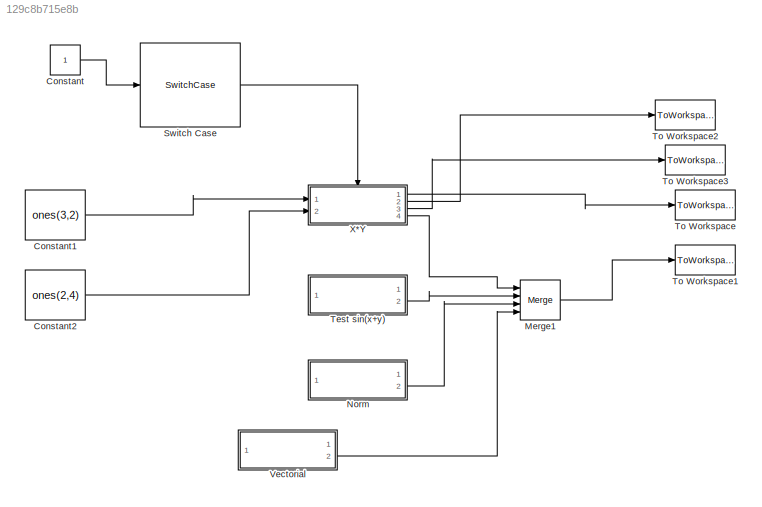
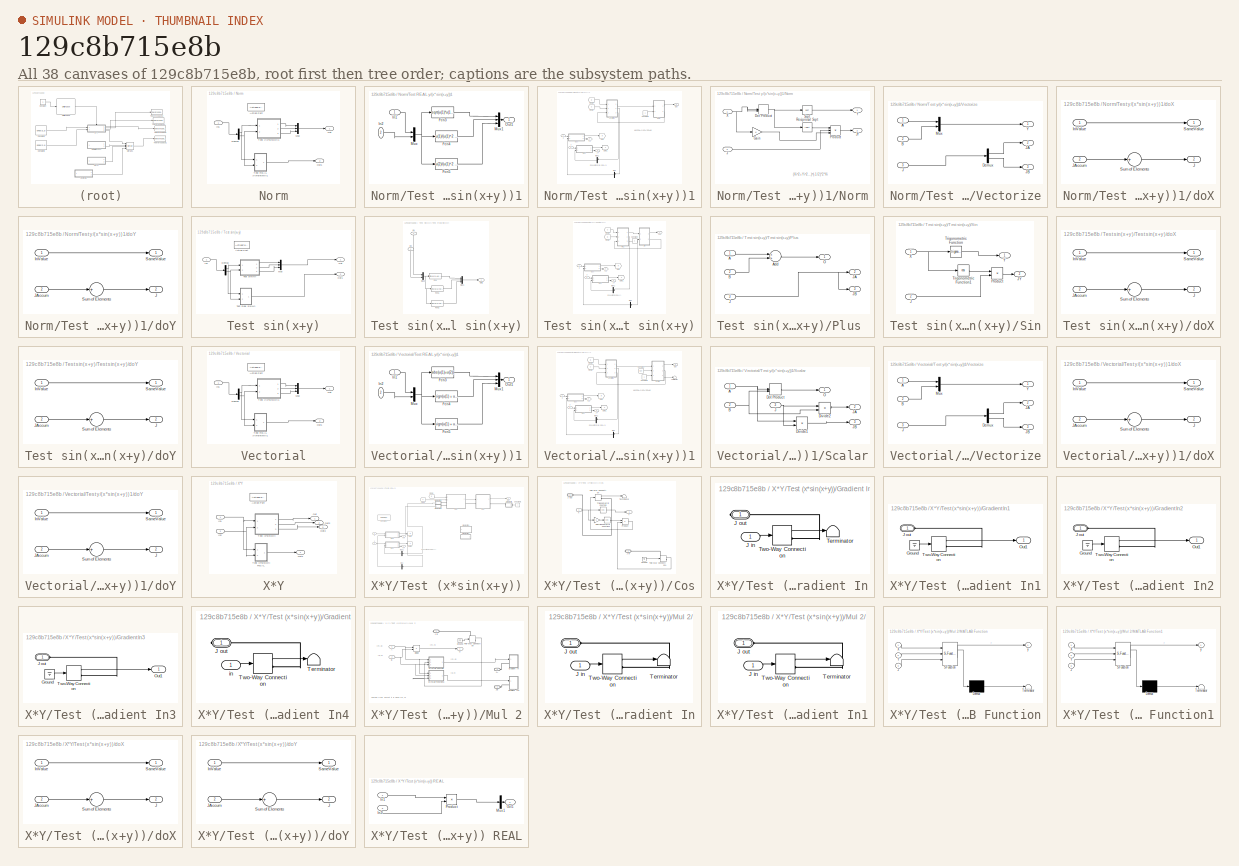
[diagram: thumbnail index - all 38 canvases of the model, root first then tree order]
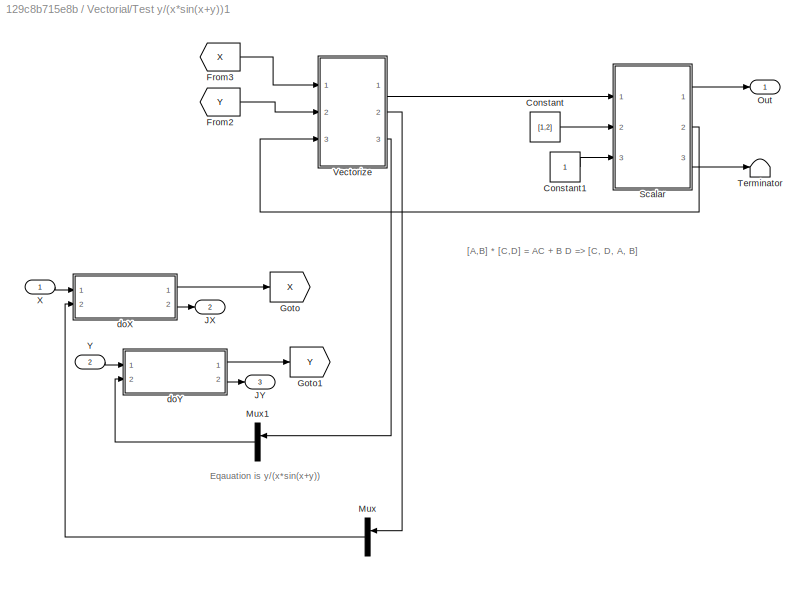
MODEL slx_129c8b715e8b
KIND model
CONFIG AbsTol = auto
CONFIG EnableMultiTasking = on
CONFIG FixedStep = 0.01
CONFIG MaxStep = auto
CONFIG MinStep = auto
CONFIG RelTol = 1e-3
CONFIG SampleTimeConstraint = Unconstrained
CONFIG Solver = FixedStepDiscrete
CONFIG SolverName = FixedStepDiscrete
CONFIG StartTime = 0.0
CONFIG StopTime = Inf
BLOCK [Constant] Constant
BLOCK [Constant] Constant1
  Value = ones(3,2)
BLOCK [Constant] Constant2
  Value = ones(2,4)
BLOCK [Merge] Merge1
  Commented = on
  Inputs = 4
  Ports = [4, 1]
BLOCK [SubSystem] Norm
  Commented = on
  Ports = [1, 2, 0, 0, 0, 0, 0, 1]
  RequestExecContextInheritance = off
  TreatAsAtomicUnit = on
  Variant = off
BLOCK [ActionPort] Norm/Action Port
BLOCK [Demux] Norm/Demux
  DisplayOption = bar
  Outputs = 2
  Ports = [1, 2]
BLOCK [Inport] Norm/In1
  IconDisplay = Port number
BLOCK [Mux] Norm/Mux
  DisplayOption = bar
  Inputs = 3
  Ports = [3, 1]
BLOCK [Outport] Norm/Out
  IconDisplay = Port number
BLOCK [Outport] Norm/Out1
  IconDisplay = Port number
  Port = 2
BLOCK [SubSystem] Norm/Test REAL y//(x*sin(x+y))1
  Ports = [2, 1]
  RequestExecContextInheritance = off
  Variant = off
BLOCK [Fcn] Norm/Test REAL y//(x*sin(x+y))1/Fcn3
  Expr = sqrt(u(1)*u(1)+u(2)*u(2))
BLOCK [Fcn] Norm/Test REAL y//(x*sin(x+y))1/Fcn4
  Expr = u(1)/(u(1)^2 + u(2)^2)^(1/2)
BLOCK [Fcn] Norm/Test REAL y//(x*sin(x+y))1/Fcn5
  Expr = u(2)/(u(1)^2 + u(2)^2)^(1/2)
BLOCK [Inport] Norm/Test REAL y//(x*sin(x+y))1/In1
  IconDisplay = Port number
BLOCK [Inport] Norm/Test REAL y//(x*sin(x+y))1/In2
  IconDisplay = Port number
  Port = 2
BLOCK [Mux] Norm/Test REAL y//(x*sin(x+y))1/Mux
  DisplayOption = bar
  Inputs = 2
  Ports = [2, 1]
BLOCK [Mux] Norm/Test REAL y//(x*sin(x+y))1/Mux1
  DisplayOption = bar
  Inputs = 3
  Ports = [3, 1]
BLOCK [Outport] Norm/Test REAL y//(x*sin(x+y))1/Out1
  IconDisplay = Port number
BLOCK [SubSystem] Norm/Test y//(x*sin(x+y))1
  Ports = [2, 3]
  RequestExecContextInheritance = off
  Variant = off
BLOCK [Constant] Norm/Test y//(x*sin(x+y))1/Constant1
BLOCK [From] Norm/Test y//(x*sin(x+y))1/From2
  GotoTag = Y
BLOCK [From] Norm/Test y//(x*sin(x+y))1/From3
  GotoTag = X
BLOCK [Goto] Norm/Test y//(x*sin(x+y))1/Goto
  GotoTag = X
BLOCK [Goto] Norm/Test y//(x*sin(x+y))1/Goto1
  GotoTag = Y
BLOCK [Outport] Norm/Test y//(x*sin(x+y))1/JX
  IconDisplay = Port number
  Port = 2
BLOCK [Outport] Norm/Test y//(x*sin(x+y))1/JY
  IconDisplay = Port number
  Port = 3
BLOCK [Mux] Norm/Test y//(x*sin(x+y))1/Mux
  DisplayOption = bar
  Inputs = 2
  Ports = [2, 1]
BLOCK [Mux] Norm/Test y//(x*sin(x+y))1/Mux1
  DisplayOption = bar
  Inputs = 2
  Ports = [2, 1]
BLOCK [SubSystem] Norm/Test y//(x*sin(x+y))1/Norm
  Ports = [2, 2]
  RequestExecContextInheritance = off
  Variant = off
BLOCK [DotProduct] Norm/Test y//(x*sin(x+y))1/Norm/Dot Product
  OutDataTypeStr = Inherit: Inherit via internal rule
BLOCK [Gain] Norm/Test y//(x*sin(x+y))1/Norm/Gain
  OutDataTypeStr = Inherit: Inherit via internal rule
  ParamDataTypeStr = Inherit: Inherit via internal rule
  SaturateOnIntegerOverflow = off
BLOCK [Inport] Norm/Test y//(x*sin(x+y))1/Norm/J
  IconDisplay = Port number
  Port = 2
BLOCK [Outport] Norm/Test y//(x*sin(x+y))1/Norm/JY
  IconDisplay = Port number
  Port = 2
BLOCK [Product] Norm/Test y//(x*sin(x+y))1/Norm/Product
  InputSameDT = off
  Inputs = 3
  OutDataTypeStr = Inherit: Inherit via internal rule
  Ports = [3, 1]
  RndMeth = Floor
  SaturateOnIntegerOverflow = off
BLOCK [Sqrt] Norm/Test y//(x*sin(x+y))1/Norm/Reciprocal Sqrt
  Operator = rSqrt
BLOCK [Sqrt] Norm/Test y//(x*sin(x+y))1/Norm/Sqrt
BLOCK [Inport] Norm/Test y//(x*sin(x+y))1/Norm/X
  IconDisplay = Port number
BLOCK [Outport] Norm/Test y//(x*sin(x+y))1/Norm/Y
  IconDisplay = Port number
BLOCK [Outport] Norm/Test y//(x*sin(x+y))1/Out
  IconDisplay = Port number
BLOCK [SubSystem] Norm/Test y//(x*sin(x+y))1/Vectorize
  Ports = [3, 3]
  RequestExecContextInheritance = off
  Variant = off
BLOCK [Inport] Norm/Test y//(x*sin(x+y))1/Vectorize/A
  IconDisplay = Port number
BLOCK [Inport] Norm/Test y//(x*sin(x+y))1/Vectorize/B
  IconDisplay = Port number
  Port = 2
BLOCK [Demux] Norm/Test y//(x*sin(x+y))1/Vectorize/Demux
  DisplayOption = bar
  Outputs = 2
  Ports = [1, 2]
BLOCK [Inport] Norm/Test y//(x*sin(x+y))1/Vectorize/J
  IconDisplay = Port number
  Port = 3
BLOCK [Outport] Norm/Test y//(x*sin(x+y))1/Vectorize/JA
  IconDisplay = Port number
  Port = 2
BLOCK [Outport] Norm/Test y//(x*sin(x+y))1/Vectorize/JB
  IconDisplay = Port number
  Port = 3
BLOCK [Mux] Norm/Test y//(x*sin(x+y))1/Vectorize/Mux
  DisplayOption = bar
  Inputs = 2
  Ports = [2, 1]
BLOCK [Outport] Norm/Test y//(x*sin(x+y))1/Vectorize/Y
  IconDisplay = Port number
BLOCK [Inport] Norm/Test y//(x*sin(x+y))1/X
  IconDisplay = Port number
BLOCK [Inport] Norm/Test y//(x*sin(x+y))1/Y
  IconDisplay = Port number
  Port = 2
BLOCK [SubSystem] Norm/Test y//(x*sin(x+y))1/doX
  Ports = [2, 2]
  RequestExecContextInheritance = off
  Variant = off
BLOCK [Inport] Norm/Test y//(x*sin(x+y))1/doX/InValue
  IconDisplay = Port number
BLOCK [Outport] Norm/Test y//(x*sin(x+y))1/doX/J
  IconDisplay = Port number
  Port = 2
BLOCK [Inport] Norm/Test y//(x*sin(x+y))1/doX/JAccum
  IconDisplay = Port number
  Port = 2
BLOCK [Outport] Norm/Test y//(x*sin(x+y))1/doX/SameValue
  IconDisplay = Port number
BLOCK [Sum] Norm/Test y//(x*sin(x+y))1/doX/Sum of Elements
  InputSameDT = off
  Inputs = +
  OutDataTypeStr = Inherit: Inherit via internal rule
  Ports = [1, 1]
  SaturateOnIntegerOverflow = off
BLOCK [SubSystem] Norm/Test y//(x*sin(x+y))1/doY
  Ports = [2, 2]
  RequestExecContextInheritance = off
  Variant = off
BLOCK [Inport] Norm/Test y//(x*sin(x+y))1/doY/InValue
  IconDisplay = Port number
BLOCK [Outport] Norm/Test y//(x*sin(x+y))1/doY/J
  IconDisplay = Port number
  Port = 2
BLOCK [Inport] Norm/Test y//(x*sin(x+y))1/doY/JAccum
  IconDisplay = Port number
  Port = 2
BLOCK [Outport] Norm/Test y//(x*sin(x+y))1/doY/SameValue
  IconDisplay = Port number
BLOCK [Sum] Norm/Test y//(x*sin(x+y))1/doY/Sum of Elements
  InputSameDT = off
  Inputs = +
  OutDataTypeStr = Inherit: Inherit via internal rule
  Ports = [1, 1]
  SaturateOnIntegerOverflow = off
BLOCK [SwitchCase] Switch Case
  Ports = [1, 1]
  ShowDefaultCase = off
BLOCK [SubSystem] Test sin(x+y)
  Commented = on
  Ports = [1, 2, 0, 0, 0, 0, 0, 1]
  RequestExecContextInheritance = off
  TreatAsAtomicUnit = on
  Variant = off
BLOCK [ActionPort] Test sin(x+y)/Action Port
BLOCK [Demux] Test sin(x+y)/Demux
  DisplayOption = bar
  Outputs = 2
  Ports = [1, 2]
BLOCK [Inport] Test sin(x+y)/In1
  IconDisplay = Port number
BLOCK [Mux] Test sin(x+y)/Mux
  DisplayOption = bar
  Inputs = 3
  Ports = [3, 1]
BLOCK [Outport] Test sin(x+y)/Out
  IconDisplay = Port number
BLOCK [Outport] Test sin(x+y)/Out1
  IconDisplay = Port number
  Port = 2
BLOCK [SubSystem] Test sin(x+y)/Test Real sin(x+y)
  Ports = [2, 1]
  RequestExecContextInheritance = off
  Variant = off
BLOCK [Fcn] Test sin(x+y)/Test Real sin(x+y)/Fcn
  Expr = sin(u(1) + u(2))
BLOCK [Fcn] Test sin(x+y)/Test Real sin(x+y)/Fcn1
  Expr = cos(u(1) + u(2))
BLOCK [Fcn] Test sin(x+y)/Test Real sin(x+y)/Fcn2
  Expr = cos(u(1) + u(2))
BLOCK [Inport] Test sin(x+y)/Test Real sin(x+y)/In1
  IconDisplay = Port number
BLOCK [Inport] Test sin(x+y)/Test Real sin(x+y)/In2
  IconDisplay = Port number
  Port = 2
BLOCK [Mux] Test sin(x+y)/Test Real sin(x+y)/Mux1
  DisplayOption = bar
  Inputs = 3
  Ports = [3, 1]
BLOCK [Mux] Test sin(x+y)/Test Real sin(x+y)/Mux2
  DisplayOption = bar
  Inputs = 2
  Ports = [2, 1]
BLOCK [Outport] Test sin(x+y)/Test Real sin(x+y)/Out1
  IconDisplay = Port number
BLOCK [SubSystem] Test sin(x+y)/Test sin(x+y)
  Ports = [2, 3]
  RequestExecContextInheritance = off
  Variant = off
BLOCK [Constant] Test sin(x+y)/Test sin(x+y)/Constant
BLOCK [From] Test sin(x+y)/Test sin(x+y)/From2
  GotoTag = X
BLOCK [From] Test sin(x+y)/Test sin(x+y)/From3
  GotoTag = Y
BLOCK [Goto] Test sin(x+y)/Test sin(x+y)/Goto
  GotoTag = X
BLOCK [Goto] Test sin(x+y)/Test sin(x+y)/Goto1
  GotoTag = Y
BLOCK [Outport] Test sin(x+y)/Test sin(x+y)/JX
  IconDisplay = Port number
  Port = 2
BLOCK [Outport] Test sin(x+y)/Test sin(x+y)/JX1
  IconDisplay = Port number
BLOCK [Outport] Test sin(x+y)/Test sin(x+y)/JY
  IconDisplay = Port number
  Port = 3
BLOCK [Mux] Test sin(x+y)/Test sin(x+y)/Mux
  DisplayOption = bar
  Inputs = 1
  Ports = [1, 1]
BLOCK [Mux] Test sin(x+y)/Test sin(x+y)/Mux1
  DisplayOption = bar
  Inputs = 1
  Ports = [1, 1]
BLOCK [SubSystem] Test sin(x+y)/Test sin(x+y)/Plus 
  Ports = [3, 3]
  RequestExecContextInheritance = off
  Variant = off
BLOCK [Inport] Test sin(x+y)/Test sin(x+y)/Plus /A
  IconDisplay = Port number
BLOCK [Sum] Test sin(x+y)/Test sin(x+y)/Plus /Add
  InputSameDT = off
  OutDataTypeStr = Inherit: Inherit via internal rule
  Ports = [2, 1]
  SaturateOnIntegerOverflow = off
BLOCK [Inport] Test sin(x+y)/Test sin(x+y)/Plus /B
  IconDisplay = Port number
  Port = 2
BLOCK [Inport] Test sin(x+y)/Test sin(x+y)/Plus /J
  IconDisplay = Port number
  Port = 3
BLOCK [Outport] Test sin(x+y)/Test sin(x+y)/Plus /JA
  IconDisplay = Port number
  Port = 2
BLOCK [Outport] Test sin(x+y)/Test sin(x+y)/Plus /JB
  IconDisplay = Port number
  Port = 3
BLOCK [Outport] Test sin(x+y)/Test sin(x+y)/Plus /O
  IconDisplay = Port number
BLOCK [SubSystem] Test sin(x+y)/Test sin(x+y)/Sin
  Ports = [2, 2]
  RequestExecContextInheritance = off
  Variant = off
BLOCK [Inport] Test sin(x+y)/Test sin(x+y)/Sin/J
  IconDisplay = Port number
  Port = 2
BLOCK [Outport] Test sin(x+y)/Test sin(x+y)/Sin/JY
  IconDisplay = Port number
  Port = 2
BLOCK [Product] Test sin(x+y)/Test sin(x+y)/Sin/Product
  InputSameDT = off
  OutDataTypeStr = Inherit: Inherit via internal rule
  Ports = [2, 1]
  RndMeth = Floor
  SaturateOnIntegerOverflow = off
BLOCK [Trigonometry] Test sin(x+y)/Test sin(x+y)/Sin/Trigonometric Function
  Ports = [1, 1]
BLOCK [Trigonometry] Test sin(x+y)/Test sin(x+y)/Sin/Trigonometric Function1
  Operator = cos
  Ports = [1, 1]
BLOCK [Inport] Test sin(x+y)/Test sin(x+y)/Sin/X
  IconDisplay = Port number
BLOCK [Outport] Test sin(x+y)/Test sin(x+y)/Sin/Y
  IconDisplay = Port number
BLOCK [Inport] Test sin(x+y)/Test sin(x+y)/X
  IconDisplay = Port number
BLOCK [Inport] Test sin(x+y)/Test sin(x+y)/Y
  IconDisplay = Port number
  Port = 2
BLOCK [SubSystem] Test sin(x+y)/Test sin(x+y)/doX
  Ports = [2, 2]
  RequestExecContextInheritance = off
  Variant = off
BLOCK [Inport] Test sin(x+y)/Test sin(x+y)/doX/InValue
  IconDisplay = Port number
BLOCK [Outport] Test sin(x+y)/Test sin(x+y)/doX/J
  IconDisplay = Port number
  Port = 2
BLOCK [Inport] Test sin(x+y)/Test sin(x+y)/doX/JAccum
  IconDisplay = Port number
  Port = 2
BLOCK [Outport] Test sin(x+y)/Test sin(x+y)/doX/SameValue
  IconDisplay = Port number
BLOCK [Sum] Test sin(x+y)/Test sin(x+y)/doX/Sum of Elements
  InputSameDT = off
  Inputs = +
  OutDataTypeStr = Inherit: Inherit via internal rule
  Ports = [1, 1]
  SaturateOnIntegerOverflow = off
BLOCK [SubSystem] Test sin(x+y)/Test sin(x+y)/doY
  Ports = [2, 2]
  RequestExecContextInheritance = off
  Variant = off
BLOCK [Inport] Test sin(x+y)/Test sin(x+y)/doY/InValue
  IconDisplay = Port number
BLOCK [Outport] Test sin(x+y)/Test sin(x+y)/doY/J
  IconDisplay = Port number
  Port = 2
BLOCK [Inport] Test sin(x+y)/Test sin(x+y)/doY/JAccum
  IconDisplay = Port number
  Port = 2
BLOCK [Outport] Test sin(x+y)/Test sin(x+y)/doY/SameValue
  IconDisplay = Port number
BLOCK [Sum] Test sin(x+y)/Test sin(x+y)/doY/Sum of Elements
  InputSameDT = off
  Inputs = +
  OutDataTypeStr = Inherit: Inherit via internal rule
  Ports = [1, 1]
  SaturateOnIntegerOverflow = off
BLOCK [ToWorkspace] To Workspace
  FixptAsFi = on
  MaxDataPoints = inf
  Ports = [1]
  SampleTime = -1
  Save2DSignal = 3-D array (concatenate along third dimension)
  SaveFormat = Timeseries
  VariableName = simout
BLOCK [ToWorkspace] To Workspace1
  FixptAsFi = on
  MaxDataPoints = inf
  Ports = [1]
  SampleTime = -1
  Save2DSignal = 3-D array (concatenate along third dimension)
  SaveFormat = Timeseries
  VariableName = simout1
BLOCK [ToWorkspace] To Workspace2
  FixptAsFi = on
  MaxDataPoints = inf
  Ports = [1]
  SampleTime = -1
  Save2DSignal = 3-D array (concatenate along third dimension)
  SaveFormat = Timeseries
  VariableName = simout2
BLOCK [ToWorkspace] To Workspace3
  FixptAsFi = on
  MaxDataPoints = inf
  Ports = [1]
  SampleTime = -1
  Save2DSignal = 3-D array (concatenate along third dimension)
  SaveFormat = Timeseries
  VariableName = simout3
BLOCK [SubSystem] Vectorial
  Commented = on
  Ports = [1, 2, 0, 0, 0, 0, 0, 1]
  RequestExecContextInheritance = off
  TreatAsAtomicUnit = on
  Variant = off
BLOCK [ActionPort] Vectorial/Action Port
BLOCK [Demux] Vectorial/Demux
  DisplayOption = bar
  Outputs = 2
  Ports = [1, 2]
BLOCK [Inport] Vectorial/In1
  IconDisplay = Port number
BLOCK [Mux] Vectorial/Mux
  DisplayOption = bar
  Inputs = 3
  Ports = [3, 1]
BLOCK [Outport] Vectorial/Out
  IconDisplay = Port number
BLOCK [Outport] Vectorial/Out1
  IconDisplay = Port number
  Port = 2
BLOCK [SubSystem] Vectorial/Test REAL y//(x*sin(x+y))1
  Ports = [2, 1]
  RequestExecContextInheritance = off
  Variant = off
BLOCK [Fcn] Vectorial/Test REAL y//(x*sin(x+y))1/Fcn3
  Expr = abs(u(1)+u(2))
BLOCK [Fcn] Vectorial/Test REAL y//(x*sin(x+y))1/Fcn4
  Expr = sign(u(1) + u(2))
BLOCK [Fcn] Vectorial/Test REAL y//(x*sin(x+y))1/Fcn5
  Expr = sign(u(1) + u(2))
BLOCK [Inport] Vectorial/Test REAL y//(x*sin(x+y))1/In1
  IconDisplay = Port number
BLOCK [Inport] Vectorial/Test REAL y//(x*sin(x+y))1/In2
  IconDisplay = Port number
  Port = 2
BLOCK [Mux] Vectorial/Test REAL y//(x*sin(x+y))1/Mux
  DisplayOption = bar
  Inputs = 2
  Ports = [2, 1]
BLOCK [Mux] Vectorial/Test REAL y//(x*sin(x+y))1/Mux1
  DisplayOption = bar
  Inputs = 3
  Ports = [3, 1]
BLOCK [Outport] Vectorial/Test REAL y//(x*sin(x+y))1/Out1
  IconDisplay = Port number
BLOCK [SubSystem] Vectorial/Test y//(x*sin(x+y))1
  Ports = [2, 3]
  RequestExecContextInheritance = off
  Variant = off
BLOCK [Constant] Vectorial/Test y//(x*sin(x+y))1/Constant
  Value = [1,2]
BLOCK [Constant] Vectorial/Test y//(x*sin(x+y))1/Constant1
BLOCK [From] Vectorial/Test y//(x*sin(x+y))1/From2
  GotoTag = Y
BLOCK [From] Vectorial/Test y//(x*sin(x+y))1/From3
  GotoTag = X
BLOCK [Goto] Vectorial/Test y//(x*sin(x+y))1/Goto
  GotoTag = X
BLOCK [Goto] Vectorial/Test y//(x*sin(x+y))1/Goto1
  GotoTag = Y
BLOCK [Outport] Vectorial/Test y//(x*sin(x+y))1/JX
  IconDisplay = Port number
  Port = 2
BLOCK [Outport] Vectorial/Test y//(x*sin(x+y))1/JY
  IconDisplay = Port number
  Port = 3
BLOCK [Mux] Vectorial/Test y//(x*sin(x+y))1/Mux
  DisplayOption = bar
  Inputs = 2
  Ports = [2, 1]
BLOCK [Mux] Vectorial/Test y//(x*sin(x+y))1/Mux1
  DisplayOption = bar
  Inputs = 2
  Ports = [2, 1]
BLOCK [Outport] Vectorial/Test y//(x*sin(x+y))1/Out
  IconDisplay = Port number
BLOCK [SubSystem] Vectorial/Test y//(x*sin(x+y))1/Scalar
  Ports = [3, 3]
  RequestExecContextInheritance = off
  Variant = off
BLOCK [Inport] Vectorial/Test y//(x*sin(x+y))1/Scalar/A
  IconDisplay = Port number
BLOCK [Inport] Vectorial/Test y//(x*sin(x+y))1/Scalar/B
  IconDisplay = Port number
  Port = 2
BLOCK [Product] Vectorial/Test y//(x*sin(x+y))1/Scalar/Divide1
  InputSameDT = off
  Inputs = **
  OutDataTypeStr = Inherit: Inherit via internal rule
  Ports = [2, 1]
  RndMeth = Floor
  SaturateOnIntegerOverflow = off
BLOCK [Product] Vectorial/Test y//(x*sin(x+y))1/Scalar/Divide2
  InputSameDT = off
  Inputs = **
  OutDataTypeStr = Inherit: Inherit via internal rule
  Ports = [2, 1]
  RndMeth = Floor
  SaturateOnIntegerOverflow = off
BLOCK [DotProduct] Vectorial/Test y//(x*sin(x+y))1/Scalar/Dot Product
  OutDataTypeStr = Inherit: Inherit via internal rule
BLOCK [Inport] Vectorial/Test y//(x*sin(x+y))1/Scalar/J
  IconDisplay = Port number
  Port = 3
BLOCK [Outport] Vectorial/Test y//(x*sin(x+y))1/Scalar/JA
  IconDisplay = Port number
  Port = 2
BLOCK [Outport] Vectorial/Test y//(x*sin(x+y))1/Scalar/JB
  IconDisplay = Port number
  Port = 3
BLOCK [Outport] Vectorial/Test y//(x*sin(x+y))1/Scalar/O
  IconDisplay = Port number
BLOCK [Terminator] Vectorial/Test y//(x*sin(x+y))1/Terminator
BLOCK [SubSystem] Vectorial/Test y//(x*sin(x+y))1/Vectorize
  Ports = [3, 3]
  RequestExecContextInheritance = off
  Variant = off
BLOCK [Inport] Vectorial/Test y//(x*sin(x+y))1/Vectorize/A
  IconDisplay = Port number
BLOCK [Inport] Vectorial/Test y//(x*sin(x+y))1/Vectorize/B
  IconDisplay = Port number
  Port = 2
BLOCK [Demux] Vectorial/Test y//(x*sin(x+y))1/Vectorize/Demux
  DisplayOption = bar
  Outputs = 2
  Ports = [1, 2]
BLOCK [Inport] Vectorial/Test y//(x*sin(x+y))1/Vectorize/J
  IconDisplay = Port number
  Port = 3
BLOCK [Outport] Vectorial/Test y//(x*sin(x+y))1/Vectorize/JA
  IconDisplay = Port number
  Port = 2
BLOCK [Outport] Vectorial/Test y//(x*sin(x+y))1/Vectorize/JB
  IconDisplay = Port number
  Port = 3
BLOCK [Mux] Vectorial/Test y//(x*sin(x+y))1/Vectorize/Mux
  DisplayOption = bar
  Inputs = 2
  Ports = [2, 1]
BLOCK [Outport] Vectorial/Test y//(x*sin(x+y))1/Vectorize/Y
  IconDisplay = Port number
BLOCK [Inport] Vectorial/Test y//(x*sin(x+y))1/X
  IconDisplay = Port number
BLOCK [Inport] Vectorial/Test y//(x*sin(x+y))1/Y
  IconDisplay = Port number
  Port = 2
BLOCK [SubSystem] Vectorial/Test y//(x*sin(x+y))1/doX
  Ports = [2, 2]
  RequestExecContextInheritance = off
  Variant = off
BLOCK [Inport] Vectorial/Test y//(x*sin(x+y))1/doX/InValue
  IconDisplay = Port number
BLOCK [Outport] Vectorial/Test y//(x*sin(x+y))1/doX/J
  IconDisplay = Port number
  Port = 2
BLOCK [Inport] Vectorial/Test y//(x*sin(x+y))1/doX/JAccum
  IconDisplay = Port number
  Port = 2
BLOCK [Outport] Vectorial/Test y//(x*sin(x+y))1/doX/SameValue
  IconDisplay = Port number
BLOCK [Sum] Vectorial/Test y//(x*sin(x+y))1/doX/Sum of Elements
  InputSameDT = off
  Inputs = +
  OutDataTypeStr = Inherit: Inherit via internal rule
  Ports = [1, 1]
  SaturateOnIntegerOverflow = off
BLOCK [SubSystem] Vectorial/Test y//(x*sin(x+y))1/doY
  Ports = [2, 2]
  RequestExecContextInheritance = off
  Variant = off
BLOCK [Inport] Vectorial/Test y//(x*sin(x+y))1/doY/InValue
  IconDisplay = Port number
BLOCK [Outport] Vectorial/Test y//(x*sin(x+y))1/doY/J
  IconDisplay = Port number
  Port = 2
BLOCK [Inport] Vectorial/Test y//(x*sin(x+y))1/doY/JAccum
  IconDisplay = Port number
  Port = 2
BLOCK [Outport] Vectorial/Test y//(x*sin(x+y))1/doY/SameValue
  IconDisplay = Port number
BLOCK [Sum] Vectorial/Test y//(x*sin(x+y))1/doY/Sum of Elements
  InputSameDT = off
  Inputs = +
  OutDataTypeStr = Inherit: Inherit via internal rule
  Ports = [1, 1]
  SaturateOnIntegerOverflow = off
BLOCK [SubSystem] X*Y
  Ports = [2, 4, 0, 0, 0, 0, 0, 1]
  RequestExecContextInheritance = off
  TreatAsAtomicUnit = on
  Variant = off
BLOCK [ActionPort] X*Y/Action Port
  ActionType = case
BLOCK [Inport] X*Y/In1
  IconDisplay = Port number
BLOCK [Inport] X*Y/In2
  IconDisplay = Port number
  Port = 2
BLOCK [Outport] X*Y/Out
  IconDisplay = Port number
BLOCK [Outport] X*Y/Out1
  IconDisplay = Port number
  Port = 4
BLOCK [Outport] X*Y/Out2
  IconDisplay = Port number
  Port = 2
BLOCK [Outport] X*Y/Out3
  IconDisplay = Port number
  Port = 3
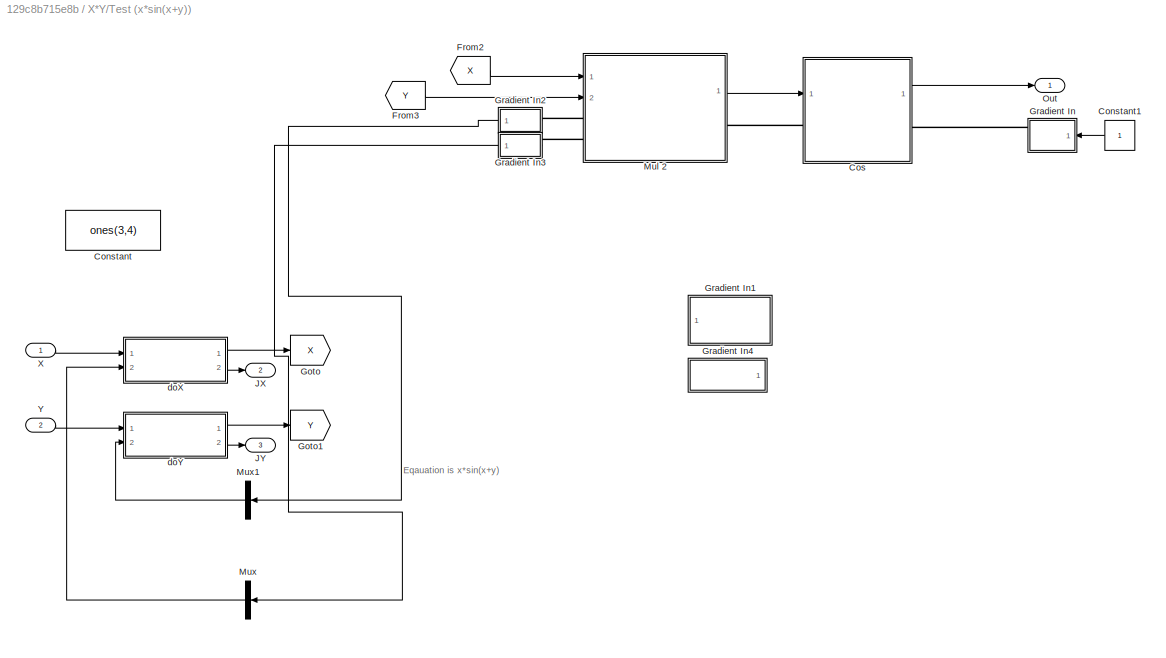
BLOCK [SubSystem] X*Y/Test (x*sin(x+y))
  Ports = [2, 3]
  RequestExecContextInheritance = off
  Variant = off
BLOCK [SubSystem] X*Y/Test (x*sin(x+y)) REAL
  Ports = [2, 1]
  RequestExecContextInheritance = off
  Variant = off
BLOCK [Inport] X*Y/Test (x*sin(x+y)) REAL/In1
  IconDisplay = Port number
BLOCK [Inport] X*Y/Test (x*sin(x+y)) REAL/In2
  IconDisplay = Port number
  Port = 2
BLOCK [Mux] X*Y/Test (x*sin(x+y)) REAL/Mux1
  DisplayOption = bar
  Inputs = 1
  Ports = [1, 1]
BLOCK [Outport] X*Y/Test (x*sin(x+y)) REAL/Out1
  IconDisplay = Port number
BLOCK [Product] X*Y/Test (x*sin(x+y)) REAL/Product
  InputSameDT = off
  Multiplication = Matrix(*)
  OutDataTypeStr = Inherit: Inherit via internal rule
  Ports = [2, 1]
  RndMeth = Floor
  SaturateOnIntegerOverflow = off
BLOCK [Constant] X*Y/Test (x*sin(x+y))/Constant
  Commented = on
  Value = ones(3,4)
BLOCK [Constant] X*Y/Test (x*sin(x+y))/Constant1
BLOCK [SubSystem] X*Y/Test (x*sin(x+y))/Cos
  Ports = [1, 1, 0, 0, 0, 1, 1]
  RequestExecContextInheritance = off
  Variant = off
BLOCK [Gain] X*Y/Test (x*sin(x+y))/Cos/Gain
  Gain = -1
  OutDataTypeStr = Inherit: Inherit via internal rule
  ParamDataTypeStr = Inherit: Inherit via internal rule
  SaturateOnIntegerOverflow = off
BLOCK [Ground] X*Y/Test (x*sin(x+y))/Cos/Ground
BLOCK [PMIOPort] X*Y/Test (x*sin(x+y))/Cos/J in
  Port = 2
  Side = Right
BLOCK [PMIOPort] X*Y/Test (x*sin(x+y))/Cos/J out
  Port = 1
  Side = Left
BLOCK [Product] X*Y/Test (x*sin(x+y))/Cos/Product
  InputSameDT = off
  OutDataTypeStr = Inherit: Inherit via internal rule
  Ports = [2, 1]
  RndMeth = Floor
  SaturateOnIntegerOverflow = off
BLOCK [Terminator] X*Y/Test (x*sin(x+y))/Cos/Terminator
BLOCK [Trigonometry] X*Y/Test (x*sin(x+y))/Cos/Trigonometric Function
  Operator = cos
  Ports = [1, 1]
BLOCK [Trigonometry] X*Y/Test (x*sin(x+y))/Cos/Trigonometric Function1
  Operator = cos
  Ports = [1, 1]
BLOCK [TwoWayConnection] X*Y/Test (x*sin(x+y))/Cos/Two-Way Connection
  Ports = [1, 1, 0, 0, 0, 0, 1]
BLOCK [TwoWayConnection] X*Y/Test (x*sin(x+y))/Cos/Two-Way Connection1
  Ports = [1, 1, 0, 0, 0, 0, 1]
BLOCK [Inport] X*Y/Test (x*sin(x+y))/Cos/X
  IconDisplay = Port number
BLOCK [Outport] X*Y/Test (x*sin(x+y))/Cos/Y
  IconDisplay = Port number
BLOCK [From] X*Y/Test (x*sin(x+y))/From2
  GotoTag = X
BLOCK [From] X*Y/Test (x*sin(x+y))/From3
  GotoTag = Y
BLOCK [Goto] X*Y/Test (x*sin(x+y))/Goto
  GotoTag = X
BLOCK [Goto] X*Y/Test (x*sin(x+y))/Goto1
  GotoTag = Y
BLOCK [SubSystem] X*Y/Test (x*sin(x+y))/Gradient In
  Ports = [1, 0, 0, 0, 0, 0, 1]
  RequestExecContextInheritance = off
  Variant = off
BLOCK [Inport] X*Y/Test (x*sin(x+y))/Gradient In/J in
  IconDisplay = Port number
BLOCK [PMIOPort] X*Y/Test (x*sin(x+y))/Gradient In/J out
  Port = 1
  Side = Right
BLOCK [Terminator] X*Y/Test (x*sin(x+y))/Gradient In/Terminator
BLOCK [TwoWayConnection] X*Y/Test (x*sin(x+y))/Gradient In/Two-Way Connection
  Ports = [1, 1, 0, 0, 0, 0, 1]
BLOCK [SubSystem] X*Y/Test (x*sin(x+y))/Gradient In1
  Commented = on
  Ports = [0, 1, 0, 0, 0, 1]
  RequestExecContextInheritance = off
  Variant = off
BLOCK [Ground] X*Y/Test (x*sin(x+y))/Gradient In1/Ground
BLOCK [PMIOPort] X*Y/Test (x*sin(x+y))/Gradient In1/J out
  Port = 1
  Side = Left
BLOCK [Outport] X*Y/Test (x*sin(x+y))/Gradient In1/Out1
  IconDisplay = Port number
BLOCK [TwoWayConnection] X*Y/Test (x*sin(x+y))/Gradient In1/Two-Way Connection
  Ports = [1, 1, 0, 0, 0, 0, 1]
BLOCK [SubSystem] X*Y/Test (x*sin(x+y))/Gradient In2
  Ports = [0, 1, 0, 0, 0, 1]
  RequestExecContextInheritance = off
  Variant = off
BLOCK [Ground] X*Y/Test (x*sin(x+y))/Gradient In2/Ground
BLOCK [PMIOPort] X*Y/Test (x*sin(x+y))/Gradient In2/J out
  Port = 1
  Side = Left
BLOCK [Outport] X*Y/Test (x*sin(x+y))/Gradient In2/Out1
  IconDisplay = Port number
BLOCK [TwoWayConnection] X*Y/Test (x*sin(x+y))/Gradient In2/Two-Way Connection
  Ports = [1, 1, 0, 0, 0, 0, 1]
BLOCK [SubSystem] X*Y/Test (x*sin(x+y))/Gradient In3
  Ports = [0, 1, 0, 0, 0, 1]
  RequestExecContextInheritance = off
  Variant = off
BLOCK [Ground] X*Y/Test (x*sin(x+y))/Gradient In3/Ground
BLOCK [PMIOPort] X*Y/Test (x*sin(x+y))/Gradient In3/J out
  Port = 1
  Side = Left
BLOCK [Outport] X*Y/Test (x*sin(x+y))/Gradient In3/Out1
  IconDisplay = Port number
BLOCK [TwoWayConnection] X*Y/Test (x*sin(x+y))/Gradient In3/Two-Way Connection
  Ports = [1, 1, 0, 0, 0, 0, 1]
BLOCK [SubSystem] X*Y/Test (x*sin(x+y))/Gradient In4
  Commented = on
  Ports = [1, 0, 0, 0, 0, 0, 1]
  RequestExecContextInheritance = off
  Variant = off
BLOCK [Inport] X*Y/Test (x*sin(x+y))/Gradient In4/ in
  IconDisplay = Port number
BLOCK [PMIOPort] X*Y/Test (x*sin(x+y))/Gradient In4/J out
  Port = 1
  Side = Right
BLOCK [Terminator] X*Y/Test (x*sin(x+y))/Gradient In4/Terminator
BLOCK [TwoWayConnection] X*Y/Test (x*sin(x+y))/Gradient In4/Two-Way Connection
  Ports = [1, 1, 0, 0, 0, 0, 1]
BLOCK [Outport] X*Y/Test (x*sin(x+y))/JX
  IconDisplay = Port number
  Port = 2
BLOCK [Outport] X*Y/Test (x*sin(x+y))/JY
  IconDisplay = Port number
  Port = 3
BLOCK [SubSystem] X*Y/Test (x*sin(x+y))/Mul 2
  Ports = [2, 1, 0, 0, 0, 2, 1]
  RequestExecContextInheritance = off
  Variant = off
BLOCK [Inport] X*Y/Test (x*sin(x+y))/Mul 2/A
  IconDisplay = Port number
BLOCK [Inport] X*Y/Test (x*sin(x+y))/Mul 2/B
  IconDisplay = Port number
  Port = 2
BLOCK [Product] X*Y/Test (x*sin(x+y))/Mul 2/Divide
  InputSameDT = off
  Inputs = **
  Multiplication = Matrix(*)
  OutDataTypeStr = Inherit: Inherit via internal rule
  Ports = [2, 1]
  RndMeth = Floor
  SaturateOnIntegerOverflow = off
BLOCK [SubSystem] X*Y/Test (x*sin(x+y))/Mul 2/Gradient In
  Ports = [1, 0, 0, 0, 0, 1]
  RequestExecContextInheritance = off
  Variant = off
BLOCK [Inport] X*Y/Test (x*sin(x+y))/Mul 2/Gradient In/J in
  IconDisplay = Port number
BLOCK [PMIOPort] X*Y/Test (x*sin(x+y))/Mul 2/Gradient In/J out
  Port = 1
  Side = Left
BLOCK [Terminator] X*Y/Test (x*sin(x+y))/Mul 2/Gradient In/Terminator
BLOCK [TwoWayConnection] X*Y/Test (x*sin(x+y))/Mul 2/Gradient In/Two-Way Connection
  Ports = [1, 1, 0, 0, 0, 0, 1]
BLOCK [SubSystem] X*Y/Test (x*sin(x+y))/Mul 2/Gradient In1
  Ports = [1, 0, 0, 0, 0, 1]
  RequestExecContextInheritance = off
  Variant = off
BLOCK [Inport] X*Y/Test (x*sin(x+y))/Mul 2/Gradient In1/J in
  IconDisplay = Port number
BLOCK [PMIOPort] X*Y/Test (x*sin(x+y))/Mul 2/Gradient In1/J out
  Port = 1
  Side = Left
BLOCK [Terminator] X*Y/Test (x*sin(x+y))/Mul 2/Gradient In1/Terminator
BLOCK [TwoWayConnection] X*Y/Test (x*sin(x+y))/Mul 2/Gradient In1/Two-Way Connection
  Ports = [1, 1, 0, 0, 0, 0, 1]
BLOCK [Ground] X*Y/Test (x*sin(x+y))/Mul 2/Ground
BLOCK [PMIOPort] X*Y/Test (x*sin(x+y))/Mul 2/J in
  Port = 1
  Side = Right
BLOCK [PMIOPort] X*Y/Test (x*sin(x+y))/Mul 2/JA
  Port = 2
  Side = Left
BLOCK [PMIOPort] X*Y/Test (x*sin(x+y))/Mul 2/JB
  Port = 3
  Side = Left
BLOCK [SubSystem] X*Y/Test (x*sin(x+y))/Mul 2/MATLAB Function
  ErrorFcn = Stateflow.Translate.translate
  PermitHierarchicalResolution = ExplicitOnly
  Ports = [3, 1]
  RequestExecContextInheritance = off
  SFBlockType = MATLAB Function
  TreatAsAtomicUnit = on
  Variant = off
BLOCK [Demux] X*Y/Test (x*sin(x+y))/Mul 2/MATLAB Function/ Demux 
  Outputs = 1
  Ports = [1, 1]
BLOCK [S-Function] X*Y/Test (x*sin(x+y))/Mul 2/MATLAB Function/ SFunction 
  EnableBusSupport = on
  FunctionName = sf_sfun
  PortCounts = [3 2]
  Ports = [3, 2]
  SFcnIsStateOwnerBlock = off
  SFunctionDeploymentMode = off
  Tag = Stateflow S-Function threeexpbi 2
BLOCK [Terminator] X*Y/Test (x*sin(x+y))/Mul 2/MATLAB Function/ Terminator 
BLOCK [Inport] X*Y/Test (x*sin(x+y))/Mul 2/MATLAB Function/J
  IconDisplay = Port number
  Port = 3
BLOCK [Inport] X*Y/Test (x*sin(x+y))/Mul 2/MATLAB Function/X
  IconDisplay = Port number
BLOCK [Inport] X*Y/Test (x*sin(x+y))/Mul 2/MATLAB Function/Y
  IconDisplay = Port number
  Port = 2
BLOCK [Outport] X*Y/Test (x*sin(x+y))/Mul 2/MATLAB Function/y
  IconDisplay = Port number
BLOCK [SubSystem] X*Y/Test (x*sin(x+y))/Mul 2/MATLAB Function1
  ErrorFcn = Stateflow.Translate.translate
  PermitHierarchicalResolution = ExplicitOnly
  Ports = [3, 1]
  RequestExecContextInheritance = off
  SFBlockType = MATLAB Function
  TreatAsAtomicUnit = on
  Variant = off
BLOCK [Demux] X*Y/Test (x*sin(x+y))/Mul 2/MATLAB Function1/ Demux 
  Outputs = 1
  Ports = [1, 1]
BLOCK [S-Function] X*Y/Test (x*sin(x+y))/Mul 2/MATLAB Function1/ SFunction 
  EnableBusSupport = on
  FunctionName = sf_sfun
  PortCounts = [3 2]
  Ports = [3, 2]
  SFcnIsStateOwnerBlock = off
  SFunctionDeploymentMode = off
  Tag = Stateflow S-Function threeexpbi 1
BLOCK [Terminator] X*Y/Test (x*sin(x+y))/Mul 2/MATLAB Function1/ Terminator 
BLOCK [Inport] X*Y/Test (x*sin(x+y))/Mul 2/MATLAB Function1/J
  IconDisplay = Port number
  Port = 3
BLOCK [Inport] X*Y/Test (x*sin(x+y))/Mul 2/MATLAB Function1/X
  IconDisplay = Port number
BLOCK [Inport] X*Y/Test (x*sin(x+y))/Mul 2/MATLAB Function1/Y
  IconDisplay = Port number
  Port = 2
BLOCK [Outport] X*Y/Test (x*sin(x+y))/Mul 2/MATLAB Function1/y
  IconDisplay = Port number
BLOCK [Outport] X*Y/Test (x*sin(x+y))/Mul 2/O
  IconDisplay = Port number
BLOCK [TwoWayConnection] X*Y/Test (x*sin(x+y))/Mul 2/Two-Way Connection
  Ports = [1, 1, 0, 0, 0, 0, 1]
BLOCK [Mux] X*Y/Test (x*sin(x+y))/Mux
  DisplayOption = bar
  Inputs = 1
  Ports = [1, 1]
BLOCK [Mux] X*Y/Test (x*sin(x+y))/Mux1
  DisplayOption = bar
  Inputs = 1
  Ports = [1, 1]
BLOCK [Outport] X*Y/Test (x*sin(x+y))/Out
  IconDisplay = Port number
BLOCK [Inport] X*Y/Test (x*sin(x+y))/X
  IconDisplay = Port number
BLOCK [Inport] X*Y/Test (x*sin(x+y))/Y
  IconDisplay = Port number
  Port = 2
BLOCK [SubSystem] X*Y/Test (x*sin(x+y))/doX
  Ports = [2, 2]
  RequestExecContextInheritance = off
  Variant = off
BLOCK [Inport] X*Y/Test (x*sin(x+y))/doX/InValue
  IconDisplay = Port number
BLOCK [Outport] X*Y/Test (x*sin(x+y))/doX/J
  IconDisplay = Port number
  Port = 2
BLOCK [Inport] X*Y/Test (x*sin(x+y))/doX/JAccum
  IconDisplay = Port number
  Port = 2
BLOCK [Outport] X*Y/Test (x*sin(x+y))/doX/SameValue
  IconDisplay = Port number
BLOCK [Sum] X*Y/Test (x*sin(x+y))/doX/Sum of Elements
  InputSameDT = off
  Inputs = +
  OutDataTypeStr = Inherit: Inherit via internal rule
  Ports = [1, 1]
  SaturateOnIntegerOverflow = off
BLOCK [SubSystem] X*Y/Test (x*sin(x+y))/doY
  Ports = [2, 2]
  RequestExecContextInheritance = off
  Variant = off
BLOCK [Inport] X*Y/Test (x*sin(x+y))/doY/InValue
  IconDisplay = Port number
BLOCK [Outport] X*Y/Test (x*sin(x+y))/doY/J
  IconDisplay = Port number
  Port = 2
BLOCK [Inport] X*Y/Test (x*sin(x+y))/doY/JAccum
  IconDisplay = Port number
  Port = 2
BLOCK [Outport] X*Y/Test (x*sin(x+y))/doY/SameValue
  IconDisplay = Port number
BLOCK [Sum] X*Y/Test (x*sin(x+y))/doY/Sum of Elements
  InputSameDT = off
  Inputs = +
  OutDataTypeStr = Inherit: Inherit via internal rule
  Ports = [1, 1]
  SaturateOnIntegerOverflow = off
ANNOTATION Norm/Test y//(x*sin(x+y))1: Eqauation is y/(x*sin(x+y))
ANNOTATION Norm/Test y//(x*sin(x+y))1: [A,B] * [C,D] = AC + B D => [C, D, A, B]
ANNOTATION Norm/Test y//(x*sin(x+y))1/Norm: (Xi^2+Yi^2...)^(-1/2)*2*Xi
ANNOTATION Test sin(x+y)/Test sin(x+y): Eqauation is sin(x+y)
ANNOTATION Vectorial/Test y//(x*sin(x+y))1: Eqauation is y/(x*sin(x+y))
ANNOTATION Vectorial/Test y//(x*sin(x+y))1: [A,B] * [C,D] = AC + B D => [C, D, A, B]
ANNOTATION X*Y/Test (x*sin(x+y)): Eqauation is x*sin(x+y)
ANNOTATION X*Y/Test (x*sin(x+y))/Mul 2: Coming from parent it is sized [m,n]
ANNOTATION X*Y/Test (x*sin(x+y))/Mul 2: [m,n]
ANNOTATION X*Y/Test (x*sin(x+y))/Mul 2: [m,q]
ANNOTATION X*Y/Test (x*sin(x+y))/Mul 2: [q,n]
LINE Constant1:1 -> X*Y:1
LINE Constant2:1 -> X*Y:2
LINE Constant:1 -> Switch Case:1
LINE Merge1:1 -> To Workspace1:1
NET Norm/Demux:1 -> Norm/Test REAL y//(x*sin(x+y))1:1, Norm/Test y//(x*sin(x+y))1:1
NET Norm/Demux:2 -> Norm/Test REAL y//(x*sin(x+y))1:2, Norm/Test y//(x*sin(x+y))1:2
LINE Norm/In1:1 -> Norm/Demux:1
LINE Norm/Mux:1 -> Norm/Out:1
LINE Norm/Test REAL y//(x*sin(x+y))1/Fcn3:1 -> Norm/Test REAL y//(x*sin(x+y))1/Mux1:1
LINE Norm/Test REAL y//(x*sin(x+y))1/Fcn4:1 -> Norm/Test REAL y//(x*sin(x+y))1/Mux1:2
LINE Norm/Test REAL y//(x*sin(x+y))1/Fcn5:1 -> Norm/Test REAL y//(x*sin(x+y))1/Mux1:3
LINE Norm/Test REAL y//(x*sin(x+y))1/In1:1 -> Norm/Test REAL y//(x*sin(x+y))1/Mux:1
LINE Norm/Test REAL y//(x*sin(x+y))1/In2:1 -> Norm/Test REAL y//(x*sin(x+y))1/Mux:2
LINE Norm/Test REAL y//(x*sin(x+y))1/Mux1:1 -> Norm/Test REAL y//(x*sin(x+y))1/Out1:1
NET Norm/Test REAL y//(x*sin(x+y))1/Mux:1 -> Norm/Test REAL y//(x*sin(x+y))1/Fcn3:1, Norm/Test REAL y//(x*sin(x+y))1/Fcn4:1, Norm/Test REAL y//(x*sin(x+y))1/Fcn5:1
LINE Norm/Test REAL y//(x*sin(x+y))1:1 -> Norm/Out1:1
LINE Norm/Test y//(x*sin(x+y))1/Constant1:1 -> Norm/Test y//(x*sin(x+y))1/Norm:2
LINE Norm/Test y//(x*sin(x+y))1/From2:1 -> Norm/Test y//(x*sin(x+y))1/Vectorize:2
LINE Norm/Test y//(x*sin(x+y))1/From3:1 -> Norm/Test y//(x*sin(x+y))1/Vectorize:1
LINE Norm/Test y//(x*sin(x+y))1/Mux1:1 -> Norm/Test y//(x*sin(x+y))1/doY:2
LINE Norm/Test y//(x*sin(x+y))1/Mux:1 -> Norm/Test y//(x*sin(x+y))1/doX:2
NET Norm/Test y//(x*sin(x+y))1/Norm/Dot Product:1 -> Norm/Test y//(x*sin(x+y))1/Norm/Reciprocal Sqrt:1, Norm/Test y//(x*sin(x+y))1/Norm/Sqrt:1
LINE Norm/Test y//(x*sin(x+y))1/Norm/Gain:1 -> Norm/Test y//(x*sin(x+y))1/Norm/Product:3
LINE Norm/Test y//(x*sin(x+y))1/Norm/J:1 -> Norm/Test y//(x*sin(x+y))1/Norm/Product:2
LINE Norm/Test y//(x*sin(x+y))1/Norm/Product:1 -> Norm/Test y//(x*sin(x+y))1/Norm/JY:1
LINE Norm/Test y//(x*sin(x+y))1/Norm/Reciprocal Sqrt:1 -> Norm/Test y//(x*sin(x+y))1/Norm/Product:1
LINE Norm/Test y//(x*sin(x+y))1/Norm/Sqrt:1 -> Norm/Test y//(x*sin(x+y))1/Norm/Y:1
NET Norm/Test y//(x*sin(x+y))1/Norm/X:1 -> Norm/Test y//(x*sin(x+y))1/Norm/Dot Product:1, Norm/Test y//(x*sin(x+y))1/Norm/Dot Product:2, Norm/Test y//(x*sin(x+y))1/Norm/Gain:1
LINE Norm/Test y//(x*sin(x+y))1/Norm:1 -> Norm/Test y//(x*sin(x+y))1/Out:1
LINE Norm/Test y//(x*sin(x+y))1/Norm:2 -> Norm/Test y//(x*sin(x+y))1/Vectorize:3
LINE Norm/Test y//(x*sin(x+y))1/Vectorize/A:1 -> Norm/Test y//(x*sin(x+y))1/Vectorize/Mux:1
LINE Norm/Test y//(x*sin(x+y))1/Vectorize/B:1 -> Norm/Test y//(x*sin(x+y))1/Vectorize/Mux:2
LINE Norm/Test y//(x*sin(x+y))1/Vectorize/Demux:1 -> Norm/Test y//(x*sin(x+y))1/Vectorize/JA:1
LINE Norm/Test y//(x*sin(x+y))1/Vectorize/Demux:2 -> Norm/Test y//(x*sin(x+y))1/Vectorize/JB:1
LINE Norm/Test y//(x*sin(x+y))1/Vectorize/J:1 -> Norm/Test y//(x*sin(x+y))1/Vectorize/Demux:1
LINE Norm/Test y//(x*sin(x+y))1/Vectorize/Mux:1 -> Norm/Test y//(x*sin(x+y))1/Vectorize/Y:1
LINE Norm/Test y//(x*sin(x+y))1/Vectorize:1 -> Norm/Test y//(x*sin(x+y))1/Norm:1
LINE Norm/Test y//(x*sin(x+y))1/Vectorize:2 -> Norm/Test y//(x*sin(x+y))1/Mux:1
LINE Norm/Test y//(x*sin(x+y))1/Vectorize:3 -> Norm/Test y//(x*sin(x+y))1/Mux1:1
LINE Norm/Test y//(x*sin(x+y))1/X:1 -> Norm/Test y//(x*sin(x+y))1/doX:1
LINE Norm/Test y//(x*sin(x+y))1/Y:1 -> Norm/Test y//(x*sin(x+y))1/doY:1
LINE Norm/Test y//(x*sin(x+y))1/doX/InValue:1 -> Norm/Test y//(x*sin(x+y))1/doX/SameValue:1
LINE Norm/Test y//(x*sin(x+y))1/doX/JAccum:1 -> Norm/Test y//(x*sin(x+y))1/doX/Sum of Elements:1
LINE Norm/Test y//(x*sin(x+y))1/doX/Sum of Elements:1 -> Norm/Test y//(x*sin(x+y))1/doX/J:1
LINE Norm/Test y//(x*sin(x+y))1/doX:1 -> Norm/Test y//(x*sin(x+y))1/Goto:1
LINE Norm/Test y//(x*sin(x+y))1/doX:2 -> Norm/Test y//(x*sin(x+y))1/JX:1
LINE Norm/Test y//(x*sin(x+y))1/doY/InValue:1 -> Norm/Test y//(x*sin(x+y))1/doY/SameValue:1
LINE Norm/Test y//(x*sin(x+y))1/doY/JAccum:1 -> Norm/Test y//(x*sin(x+y))1/doY/Sum of Elements:1
LINE Norm/Test y//(x*sin(x+y))1/doY/Sum of Elements:1 -> Norm/Test y//(x*sin(x+y))1/doY/J:1
LINE Norm/Test y//(x*sin(x+y))1/doY:1 -> Norm/Test y//(x*sin(x+y))1/Goto1:1
LINE Norm/Test y//(x*sin(x+y))1/doY:2 -> Norm/Test y//(x*sin(x+y))1/JY:1
LINE Norm/Test y//(x*sin(x+y))1:1 -> Norm/Mux:1
LINE Norm/Test y//(x*sin(x+y))1:2 -> Norm/Mux:2
LINE Norm/Test y//(x*sin(x+y))1:3 -> Norm/Mux:3
LINE Norm:2 -> Merge1:3
LINE Switch Case:1 -> X*Y:ifaction
NET Test sin(x+y)/Demux:1 -> Test sin(x+y)/Test Real sin(x+y):1, Test sin(x+y)/Test sin(x+y):1
NET Test sin(x+y)/Demux:2 -> Test sin(x+y)/Test Real sin(x+y):2, Test sin(x+y)/Test sin(x+y):2
LINE Test sin(x+y)/In1:1 -> Test sin(x+y)/Demux:1
LINE Test sin(x+y)/Mux:1 -> Test sin(x+y)/Out:1
LINE Test sin(x+y)/Test Real sin(x+y)/Fcn1:1 -> Test sin(x+y)/Test Real sin(x+y)/Mux1:2
LINE Test sin(x+y)/Test Real sin(x+y)/Fcn2:1 -> Test sin(x+y)/Test Real sin(x+y)/Mux1:3
LINE Test sin(x+y)/Test Real sin(x+y)/Fcn:1 -> Test sin(x+y)/Test Real sin(x+y)/Mux1:1
LINE Test sin(x+y)/Test Real sin(x+y)/In1:1 -> Test sin(x+y)/Test Real sin(x+y)/Mux2:1
LINE Test sin(x+y)/Test Real sin(x+y)/In2:1 -> Test sin(x+y)/Test Real sin(x+y)/Mux2:2
LINE Test sin(x+y)/Test Real sin(x+y)/Mux1:1 -> Test sin(x+y)/Test Real sin(x+y)/Out1:1
NET Test sin(x+y)/Test Real sin(x+y)/Mux2:1 -> Test sin(x+y)/Test Real sin(x+y)/Fcn1:1, Test sin(x+y)/Test Real sin(x+y)/Fcn2:1, Test sin(x+y)/Test Real sin(x+y)/Fcn:1
LINE Test sin(x+y)/Test Real sin(x+y):1 -> Test sin(x+y)/Out1:1
LINE Test sin(x+y)/Test sin(x+y)/Constant:1 -> Test sin(x+y)/Test sin(x+y)/Sin:2
LINE Test sin(x+y)/Test sin(x+y)/From2:1 -> Test sin(x+y)/Test sin(x+y)/Plus :2
LINE Test sin(x+y)/Test sin(x+y)/From3:1 -> Test sin(x+y)/Test sin(x+y)/Plus :1
LINE Test sin(x+y)/Test sin(x+y)/Mux1:1 -> Test sin(x+y)/Test sin(x+y)/doY:2
LINE Test sin(x+y)/Test sin(x+y)/Mux:1 -> Test sin(x+y)/Test sin(x+y)/doX:2
LINE Test sin(x+y)/Test sin(x+y)/Plus /A:1 -> Test sin(x+y)/Test sin(x+y)/Plus /Add:1
LINE Test sin(x+y)/Test sin(x+y)/Plus /Add:1 -> Test sin(x+y)/Test sin(x+y)/Plus /O:1
LINE Test sin(x+y)/Test sin(x+y)/Plus /B:1 -> Test sin(x+y)/Test sin(x+y)/Plus /Add:2
NET Test sin(x+y)/Test sin(x+y)/Plus /J:1 -> Test sin(x+y)/Test sin(x+y)/Plus /JA:1, Test sin(x+y)/Test sin(x+y)/Plus /JB:1
LINE Test sin(x+y)/Test sin(x+y)/Plus :1 -> Test sin(x+y)/Test sin(x+y)/Sin:1
LINE Test sin(x+y)/Test sin(x+y)/Plus :2 -> Test sin(x+y)/Test sin(x+y)/Mux1:1
LINE Test sin(x+y)/Test sin(x+y)/Plus :3 -> Test sin(x+y)/Test sin(x+y)/Mux:1
LINE Test sin(x+y)/Test sin(x+y)/Sin/J:1 -> Test sin(x+y)/Test sin(x+y)/Sin/Product:2
LINE Test sin(x+y)/Test sin(x+y)/Sin/Product:1 -> Test sin(x+y)/Test sin(x+y)/Sin/JY:1
LINE Test sin(x+y)/Test sin(x+y)/Sin/Trigonometric Function1:1 -> Test sin(x+y)/Test sin(x+y)/Sin/Product:1
LINE Test sin(x+y)/Test sin(x+y)/Sin/Trigonometric Function:1 -> Test sin(x+y)/Test sin(x+y)/Sin/Y:1
NET Test sin(x+y)/Test sin(x+y)/Sin/X:1 -> Test sin(x+y)/Test sin(x+y)/Sin/Trigonometric Function1:1, Test sin(x+y)/Test sin(x+y)/Sin/Trigonometric Function:1
LINE Test sin(x+y)/Test sin(x+y)/Sin:1 -> Test sin(x+y)/Test sin(x+y)/JX1:1
LINE Test sin(x+y)/Test sin(x+y)/Sin:2 -> Test sin(x+y)/Test sin(x+y)/Plus :3
LINE Test sin(x+y)/Test sin(x+y)/X:1 -> Test sin(x+y)/Test sin(x+y)/doX:1
LINE Test sin(x+y)/Test sin(x+y)/Y:1 -> Test sin(x+y)/Test sin(x+y)/doY:1
LINE Test sin(x+y)/Test sin(x+y)/doX/InValue:1 -> Test sin(x+y)/Test sin(x+y)/doX/SameValue:1
LINE Test sin(x+y)/Test sin(x+y)/doX/JAccum:1 -> Test sin(x+y)/Test sin(x+y)/doX/Sum of Elements:1
LINE Test sin(x+y)/Test sin(x+y)/doX/Sum of Elements:1 -> Test sin(x+y)/Test sin(x+y)/doX/J:1
LINE Test sin(x+y)/Test sin(x+y)/doX:1 -> Test sin(x+y)/Test sin(x+y)/Goto:1
LINE Test sin(x+y)/Test sin(x+y)/doX:2 -> Test sin(x+y)/Test sin(x+y)/JX:1
LINE Test sin(x+y)/Test sin(x+y)/doY/InValue:1 -> Test sin(x+y)/Test sin(x+y)/doY/SameValue:1
LINE Test sin(x+y)/Test sin(x+y)/doY/JAccum:1 -> Test sin(x+y)/Test sin(x+y)/doY/Sum of Elements:1
LINE Test sin(x+y)/Test sin(x+y)/doY/Sum of Elements:1 -> Test sin(x+y)/Test sin(x+y)/doY/J:1
LINE Test sin(x+y)/Test sin(x+y)/doY:1 -> Test sin(x+y)/Test sin(x+y)/Goto1:1
LINE Test sin(x+y)/Test sin(x+y)/doY:2 -> Test sin(x+y)/Test sin(x+y)/JY:1
LINE Test sin(x+y)/Test sin(x+y):1 -> Test sin(x+y)/Mux:1
LINE Test sin(x+y)/Test sin(x+y):2 -> Test sin(x+y)/Mux:2
LINE Test sin(x+y)/Test sin(x+y):3 -> Test sin(x+y)/Mux:3
LINE Test sin(x+y):2 -> Merge1:2
NET Vectorial/Demux:1 -> Vectorial/Test REAL y//(x*sin(x+y))1:1, Vectorial/Test y//(x*sin(x+y))1:1
NET Vectorial/Demux:2 -> Vectorial/Test REAL y//(x*sin(x+y))1:2, Vectorial/Test y//(x*sin(x+y))1:2
LINE Vectorial/In1:1 -> Vectorial/Demux:1
LINE Vectorial/Mux:1 -> Vectorial/Out:1
LINE Vectorial/Test REAL y//(x*sin(x+y))1/Fcn3:1 -> Vectorial/Test REAL y//(x*sin(x+y))1/Mux1:1
LINE Vectorial/Test REAL y//(x*sin(x+y))1/Fcn4:1 -> Vectorial/Test REAL y//(x*sin(x+y))1/Mux1:2
LINE Vectorial/Test REAL y//(x*sin(x+y))1/Fcn5:1 -> Vectorial/Test REAL y//(x*sin(x+y))1/Mux1:3
LINE Vectorial/Test REAL y//(x*sin(x+y))1/In1:1 -> Vectorial/Test REAL y//(x*sin(x+y))1/Mux:1
LINE Vectorial/Test REAL y//(x*sin(x+y))1/In2:1 -> Vectorial/Test REAL y//(x*sin(x+y))1/Mux:2
LINE Vectorial/Test REAL y//(x*sin(x+y))1/Mux1:1 -> Vectorial/Test REAL y//(x*sin(x+y))1/Out1:1
NET Vectorial/Test REAL y//(x*sin(x+y))1/Mux:1 -> Vectorial/Test REAL y//(x*sin(x+y))1/Fcn3:1, Vectorial/Test REAL y//(x*sin(x+y))1/Fcn4:1, Vectorial/Test REAL y//(x*sin(x+y))1/Fcn5:1
LINE Vectorial/Test REAL y//(x*sin(x+y))1:1 -> Vectorial/Out1:1
LINE Vectorial/Test y//(x*sin(x+y))1/Constant1:1 -> Vectorial/Test y//(x*sin(x+y))1/Scalar:3
LINE Vectorial/Test y//(x*sin(x+y))1/Constant:1 -> Vectorial/Test y//(x*sin(x+y))1/Scalar:2
LINE Vectorial/Test y//(x*sin(x+y))1/From2:1 -> Vectorial/Test y//(x*sin(x+y))1/Vectorize:2
LINE Vectorial/Test y//(x*sin(x+y))1/From3:1 -> Vectorial/Test y//(x*sin(x+y))1/Vectorize:1
LINE Vectorial/Test y//(x*sin(x+y))1/Mux1:1 -> Vectorial/Test y//(x*sin(x+y))1/doY:2
LINE Vectorial/Test y//(x*sin(x+y))1/Mux:1 -> Vectorial/Test y//(x*sin(x+y))1/doX:2
NET Vectorial/Test y//(x*sin(x+y))1/Scalar/A:1 -> Vectorial/Test y//(x*sin(x+y))1/Scalar/Divide1:1, Vectorial/Test y//(x*sin(x+y))1/Scalar/Dot Product:1
NET Vectorial/Test y//(x*sin(x+y))1/Scalar/B:1 -> Vectorial/Test y//(x*sin(x+y))1/Scalar/Divide2:2, Vectorial/Test y//(x*sin(x+y))1/Scalar/Dot Product:2
LINE Vectorial/Test y//(x*sin(x+y))1/Scalar/Divide1:1 -> Vectorial/Test y//(x*sin(x+y))1/Scalar/JB:1
LINE Vectorial/Test y//(x*sin(x+y))1/Scalar/Divide2:1 -> Vectorial/Test y//(x*sin(x+y))1/Scalar/JA:1
LINE Vectorial/Test y//(x*sin(x+y))1/Scalar/Dot Product:1 -> Vectorial/Test y//(x*sin(x+y))1/Scalar/O:1
NET Vectorial/Test y//(x*sin(x+y))1/Scalar/J:1 -> Vectorial/Test y//(x*sin(x+y))1/Scalar/Divide1:2, Vectorial/Test y//(x*sin(x+y))1/Scalar/Divide2:1
LINE Vectorial/Test y//(x*sin(x+y))1/Scalar:1 -> Vectorial/Test y//(x*sin(x+y))1/Out:1
LINE Vectorial/Test y//(x*sin(x+y))1/Scalar:2 -> Vectorial/Test y//(x*sin(x+y))1/Vectorize:3
LINE Vectorial/Test y//(x*sin(x+y))1/Scalar:3 -> Vectorial/Test y//(x*sin(x+y))1/Terminator:1
LINE Vectorial/Test y//(x*sin(x+y))1/Vectorize/A:1 -> Vectorial/Test y//(x*sin(x+y))1/Vectorize/Mux:1
LINE Vectorial/Test y//(x*sin(x+y))1/Vectorize/B:1 -> Vectorial/Test y//(x*sin(x+y))1/Vectorize/Mux:2
LINE Vectorial/Test y//(x*sin(x+y))1/Vectorize/Demux:1 -> Vectorial/Test y//(x*sin(x+y))1/Vectorize/JA:1
LINE Vectorial/Test y//(x*sin(x+y))1/Vectorize/Demux:2 -> Vectorial/Test y//(x*sin(x+y))1/Vectorize/JB:1
LINE Vectorial/Test y//(x*sin(x+y))1/Vectorize/J:1 -> Vectorial/Test y//(x*sin(x+y))1/Vectorize/Demux:1
LINE Vectorial/Test y//(x*sin(x+y))1/Vectorize/Mux:1 -> Vectorial/Test y//(x*sin(x+y))1/Vectorize/Y:1
LINE Vectorial/Test y//(x*sin(x+y))1/Vectorize:1 -> Vectorial/Test y//(x*sin(x+y))1/Scalar:1
LINE Vectorial/Test y//(x*sin(x+y))1/Vectorize:2 -> Vectorial/Test y//(x*sin(x+y))1/Mux:1
LINE Vectorial/Test y//(x*sin(x+y))1/Vectorize:3 -> Vectorial/Test y//(x*sin(x+y))1/Mux1:1
LINE Vectorial/Test y//(x*sin(x+y))1/X:1 -> Vectorial/Test y//(x*sin(x+y))1/doX:1
LINE Vectorial/Test y//(x*sin(x+y))1/Y:1 -> Vectorial/Test y//(x*sin(x+y))1/doY:1
LINE Vectorial/Test y//(x*sin(x+y))1/doX/InValue:1 -> Vectorial/Test y//(x*sin(x+y))1/doX/SameValue:1
LINE Vectorial/Test y//(x*sin(x+y))1/doX/JAccum:1 -> Vectorial/Test y//(x*sin(x+y))1/doX/Sum of Elements:1
LINE Vectorial/Test y//(x*sin(x+y))1/doX/Sum of Elements:1 -> Vectorial/Test y//(x*sin(x+y))1/doX/J:1
LINE Vectorial/Test y//(x*sin(x+y))1/doX:1 -> Vectorial/Test y//(x*sin(x+y))1/Goto:1
LINE Vectorial/Test y//(x*sin(x+y))1/doX:2 -> Vectorial/Test y//(x*sin(x+y))1/JX:1
LINE Vectorial/Test y//(x*sin(x+y))1/doY/InValue:1 -> Vectorial/Test y//(x*sin(x+y))1/doY/SameValue:1
LINE Vectorial/Test y//(x*sin(x+y))1/doY/JAccum:1 -> Vectorial/Test y//(x*sin(x+y))1/doY/Sum of Elements:1
LINE Vectorial/Test y//(x*sin(x+y))1/doY/Sum of Elements:1 -> Vectorial/Test y//(x*sin(x+y))1/doY/J:1
LINE Vectorial/Test y//(x*sin(x+y))1/doY:1 -> Vectorial/Test y//(x*sin(x+y))1/Goto1:1
LINE Vectorial/Test y//(x*sin(x+y))1/doY:2 -> Vectorial/Test y//(x*sin(x+y))1/JY:1
LINE Vectorial/Test y//(x*sin(x+y))1:1 -> Vectorial/Mux:1
LINE Vectorial/Test y//(x*sin(x+y))1:2 -> Vectorial/Mux:2
LINE Vectorial/Test y//(x*sin(x+y))1:3 -> Vectorial/Mux:3
LINE Vectorial:2 -> Merge1:4
NET X*Y/In1:1 -> X*Y/Test (x*sin(x+y)) REAL:1, X*Y/Test (x*sin(x+y)):1
NET X*Y/In2:1 -> X*Y/Test (x*sin(x+y)) REAL:2, X*Y/Test (x*sin(x+y)):2
LINE X*Y/Test (x*sin(x+y)) REAL/In1:1 -> X*Y/Test (x*sin(x+y)) REAL/Product:1
LINE X*Y/Test (x*sin(x+y)) REAL/In2:1 -> X*Y/Test (x*sin(x+y)) REAL/Product:2
LINE X*Y/Test (x*sin(x+y)) REAL/Mux1:1 -> X*Y/Test (x*sin(x+y)) REAL/Out1:1
LINE X*Y/Test (x*sin(x+y)) REAL/Product:1 -> X*Y/Test (x*sin(x+y)) REAL/Mux1:1
LINE X*Y/Test (x*sin(x+y)) REAL:1 -> X*Y/Out1:1
LINE X*Y/Test (x*sin(x+y))/Constant1:1 -> X*Y/Test (x*sin(x+y))/Gradient In:1
LINE X*Y/Test (x*sin(x+y))/Cos/Gain:1 -> X*Y/Test (x*sin(x+y))/Cos/Trigonometric Function1:1
LINE X*Y/Test (x*sin(x+y))/Cos/Ground:1 -> X*Y/Test (x*sin(x+y))/Cos/Two-Way Connection1:1
LINE X*Y/Test (x*sin(x+y))/Cos/Product:1 -> X*Y/Test (x*sin(x+y))/Cos/Two-Way Connection:1
LINE X*Y/Test (x*sin(x+y))/Cos/Trigonometric Function1:1 -> X*Y/Test (x*sin(x+y))/Cos/Product:1
LINE X*Y/Test (x*sin(x+y))/Cos/Trigonometric Function:1 -> X*Y/Test (x*sin(x+y))/Cos/Y:1
LINE X*Y/Test (x*sin(x+y))/Cos/Two-Way Connection1:1 -> X*Y/Test (x*sin(x+y))/Cos/Product:2
LINE X*Y/Test (x*sin(x+y))/Cos/Two-Way Connection:1 -> X*Y/Test (x*sin(x+y))/Cos/Terminator:1
NET X*Y/Test (x*sin(x+y))/Cos/X:1 -> X*Y/Test (x*sin(x+y))/Cos/Gain:1, X*Y/Test (x*sin(x+y))/Cos/Trigonometric Function:1
LINE X*Y/Test (x*sin(x+y))/Cos:1 -> X*Y/Test (x*sin(x+y))/Out:1
LINE X*Y/Test (x*sin(x+y))/From2:1 -> X*Y/Test (x*sin(x+y))/Mul 2:1
LINE X*Y/Test (x*sin(x+y))/From3:1 -> X*Y/Test (x*sin(x+y))/Mul 2:2
LINE X*Y/Test (x*sin(x+y))/Gradient In/J in:1 -> X*Y/Test (x*sin(x+y))/Gradient In/Two-Way Connection:1
LINE X*Y/Test (x*sin(x+y))/Gradient In/Two-Way Connection:1 -> X*Y/Test (x*sin(x+y))/Gradient In/Terminator:1
LINE X*Y/Test (x*sin(x+y))/Gradient In1/Ground:1 -> X*Y/Test (x*sin(x+y))/Gradient In1/Two-Way Connection:1
LINE X*Y/Test (x*sin(x+y))/Gradient In1/Two-Way Connection:1 -> X*Y/Test (x*sin(x+y))/Gradient In1/Out1:1
LINE X*Y/Test (x*sin(x+y))/Gradient In2/Ground:1 -> X*Y/Test (x*sin(x+y))/Gradient In2/Two-Way Connection:1
LINE X*Y/Test (x*sin(x+y))/Gradient In2/Two-Way Connection:1 -> X*Y/Test (x*sin(x+y))/Gradient In2/Out1:1
LINE X*Y/Test (x*sin(x+y))/Gradient In2:1 -> X*Y/Test (x*sin(x+y))/Mux1:1
LINE X*Y/Test (x*sin(x+y))/Gradient In3/Ground:1 -> X*Y/Test (x*sin(x+y))/Gradient In3/Two-Way Connection:1
LINE X*Y/Test (x*sin(x+y))/Gradient In3/Two-Way Connection:1 -> X*Y/Test (x*sin(x+y))/Gradient In3/Out1:1
LINE X*Y/Test (x*sin(x+y))/Gradient In3:1 -> X*Y/Test (x*sin(x+y))/Mux:1
LINE X*Y/Test (x*sin(x+y))/Gradient In4/ in:1 -> X*Y/Test (x*sin(x+y))/Gradient In4/Two-Way Connection:1
LINE X*Y/Test (x*sin(x+y))/Gradient In4/Two-Way Connection:1 -> X*Y/Test (x*sin(x+y))/Gradient In4/Terminator:1
NET X*Y/Test (x*sin(x+y))/Mul 2/A:1 -> X*Y/Test (x*sin(x+y))/Mul 2/Divide:1, X*Y/Test (x*sin(x+y))/Mul 2/MATLAB Function1:1, X*Y/Test (x*sin(x+y))/Mul 2/MATLAB Function:1
NET X*Y/Test (x*sin(x+y))/Mul 2/B:1 -> X*Y/Test (x*sin(x+y))/Mul 2/Divide:2, X*Y/Test (x*sin(x+y))/Mul 2/MATLAB Function1:2, X*Y/Test (x*sin(x+y))/Mul 2/MATLAB Function:2
LINE X*Y/Test (x*sin(x+y))/Mul 2/Divide:1 -> X*Y/Test (x*sin(x+y))/Mul 2/O:1
LINE X*Y/Test (x*sin(x+y))/Mul 2/Gradient In/J in:1 -> X*Y/Test (x*sin(x+y))/Mul 2/Gradient In/Two-Way Connection:1
LINE X*Y/Test (x*sin(x+y))/Mul 2/Gradient In/Two-Way Connection:1 -> X*Y/Test (x*sin(x+y))/Mul 2/Gradient In/Terminator:1
LINE X*Y/Test (x*sin(x+y))/Mul 2/Gradient In1/J in:1 -> X*Y/Test (x*sin(x+y))/Mul 2/Gradient In1/Two-Way Connection:1
LINE X*Y/Test (x*sin(x+y))/Mul 2/Gradient In1/Two-Way Connection:1 -> X*Y/Test (x*sin(x+y))/Mul 2/Gradient In1/Terminator:1
LINE X*Y/Test (x*sin(x+y))/Mul 2/Ground:1 -> X*Y/Test (x*sin(x+y))/Mul 2/Two-Way Connection:1
LINE X*Y/Test (x*sin(x+y))/Mul 2/MATLAB Function1:1 -> X*Y/Test (x*sin(x+y))/Mul 2/Gradient In1:1
LINE X*Y/Test (x*sin(x+y))/Mul 2/MATLAB Function:1 -> X*Y/Test (x*sin(x+y))/Mul 2/Gradient In:1
NET X*Y/Test (x*sin(x+y))/Mul 2/Two-Way Connection:1 -> X*Y/Test (x*sin(x+y))/Mul 2/MATLAB Function1:3, X*Y/Test (x*sin(x+y))/Mul 2/MATLAB Function:3
LINE X*Y/Test (x*sin(x+y))/Mul 2:1 -> X*Y/Test (x*sin(x+y))/Cos:1
LINE X*Y/Test (x*sin(x+y))/Mux1:1 -> X*Y/Test (x*sin(x+y))/doY:2
LINE X*Y/Test (x*sin(x+y))/Mux:1 -> X*Y/Test (x*sin(x+y))/doX:2
LINE X*Y/Test (x*sin(x+y))/X:1 -> X*Y/Test (x*sin(x+y))/doX:1
LINE X*Y/Test (x*sin(x+y))/Y:1 -> X*Y/Test (x*sin(x+y))/doY:1
LINE X*Y/Test (x*sin(x+y))/doX/InValue:1 -> X*Y/Test (x*sin(x+y))/doX/SameValue:1
LINE X*Y/Test (x*sin(x+y))/doX/JAccum:1 -> X*Y/Test (x*sin(x+y))/doX/Sum of Elements:1
LINE X*Y/Test (x*sin(x+y))/doX/Sum of Elements:1 -> X*Y/Test (x*sin(x+y))/doX/J:1
LINE X*Y/Test (x*sin(x+y))/doX:1 -> X*Y/Test (x*sin(x+y))/Goto:1
LINE X*Y/Test (x*sin(x+y))/doX:2 -> X*Y/Test (x*sin(x+y))/JX:1
LINE X*Y/Test (x*sin(x+y))/doY/InValue:1 -> X*Y/Test (x*sin(x+y))/doY/SameValue:1
LINE X*Y/Test (x*sin(x+y))/doY/JAccum:1 -> X*Y/Test (x*sin(x+y))/doY/Sum of Elements:1
LINE X*Y/Test (x*sin(x+y))/doY/Sum of Elements:1 -> X*Y/Test (x*sin(x+y))/doY/J:1
LINE X*Y/Test (x*sin(x+y))/doY:1 -> X*Y/Test (x*sin(x+y))/Goto1:1
LINE X*Y/Test (x*sin(x+y))/doY:2 -> X*Y/Test (x*sin(x+y))/JY:1
LINE X*Y/Test (x*sin(x+y)):1 -> X*Y/Out:1
LINE X*Y/Test (x*sin(x+y)):2 -> X*Y/Out2:1
LINE X*Y/Test (x*sin(x+y)):3 -> X*Y/Out3:1
LINE X*Y:1 -> To Workspace:1
LINE X*Y:2 -> To Workspace2:1
LINE X*Y:3 -> To Workspace3:1
LINE X*Y:4 -> Merge1:1
PLINE X*Y/Test (x*sin(x+y))/Cos/J in:RConn1 -- X*Y/Test (x*sin(x+y))/Cos/Two-Way Connection1:RConn1
PLINE X*Y/Test (x*sin(x+y))/Cos/J out:RConn1 -- X*Y/Test (x*sin(x+y))/Cos/Two-Way Connection:RConn1
PLINE X*Y/Test (x*sin(x+y))/Cos:LConn1 -- X*Y/Test (x*sin(x+y))/Mul 2:RConn1
PLINE X*Y/Test (x*sin(x+y))/Cos:RConn1 -- X*Y/Test (x*sin(x+y))/Gradient In:RConn1
PLINE X*Y/Test (x*sin(x+y))/Gradient In/J out:RConn1 -- X*Y/Test (x*sin(x+y))/Gradient In/Two-Way Connection:RConn1
PLINE X*Y/Test (x*sin(x+y))/Gradient In1/J out:RConn1 -- X*Y/Test (x*sin(x+y))/Gradient In1/Two-Way Connection:RConn1
PLINE X*Y/Test (x*sin(x+y))/Gradient In2/J out:RConn1 -- X*Y/Test (x*sin(x+y))/Gradient In2/Two-Way Connection:RConn1
PLINE X*Y/Test (x*sin(x+y))/Gradient In2:LConn1 -- X*Y/Test (x*sin(x+y))/Mul 2:LConn1
PLINE X*Y/Test (x*sin(x+y))/Gradient In3/J out:RConn1 -- X*Y/Test (x*sin(x+y))/Gradient In3/Two-Way Connection:RConn1
PLINE X*Y/Test (x*sin(x+y))/Gradient In3:LConn1 -- X*Y/Test (x*sin(x+y))/Mul 2:LConn2
PLINE X*Y/Test (x*sin(x+y))/Gradient In4/J out:RConn1 -- X*Y/Test (x*sin(x+y))/Gradient In4/Two-Way Connection:RConn1
PLINE X*Y/Test (x*sin(x+y))/Mul 2/Gradient In/J out:RConn1 -- X*Y/Test (x*sin(x+y))/Mul 2/Gradient In/Two-Way Connection:RConn1
PLINE X*Y/Test (x*sin(x+y))/Mul 2/Gradient In1/J out:RConn1 -- X*Y/Test (x*sin(x+y))/Mul 2/Gradient In1/Two-Way Connection:RConn1
PLINE X*Y/Test (x*sin(x+y))/Mul 2/Gradient In1:LConn1 -- X*Y/Test (x*sin(x+y))/Mul 2/JB:RConn1
PLINE X*Y/Test (x*sin(x+y))/Mul 2/Gradient In:LConn1 -- X*Y/Test (x*sin(x+y))/Mul 2/JA:RConn1
PLINE X*Y/Test (x*sin(x+y))/Mul 2/J in:RConn1 -- X*Y/Test (x*sin(x+y))/Mul 2/Two-Way Connection:RConn1
note: NET lines group one-source signal fan-out (src -> all destinations, sorted); 1:1 wires keep LINE
CHART X*Y/Test (x*sin(x+y))/Mul
2/MATLAB Function1 states=1 transitions=1
  STATE_LABEL 'eML_blk_kernel()'
  STATE_LABEL 'SCRIPT:\nfunction y = fcn(X,Y,J)\n%#codegen\n\ny = repmat(reshape(sum(X,1),size(X,2),1),1,size(Y,2));\nif length(J) == 1\n    y = J*y;\nelse\n    y = repmat(sum(J,1),size(Y,1),1).*y;\nend\n'
CHART X*Y/Test (x*sin(x+y))/Mul
2/MATLAB Function states=1 transitions=1
  STATE_LABEL 'eML_blk_kernel()'
  STATE_LABEL 'SCRIPT:\nfunction y = fcn(X,Y,J)\n%#codegen\n\ny = repmat(reshape(sum(Y,2),1,size(Y,1)),size(X,1),1);\nif length(J) == 1\n    y = J*y;\nelse\n    y = repmat(sum(J,2),1,size(X,2)).*y;\nend\n\n'
